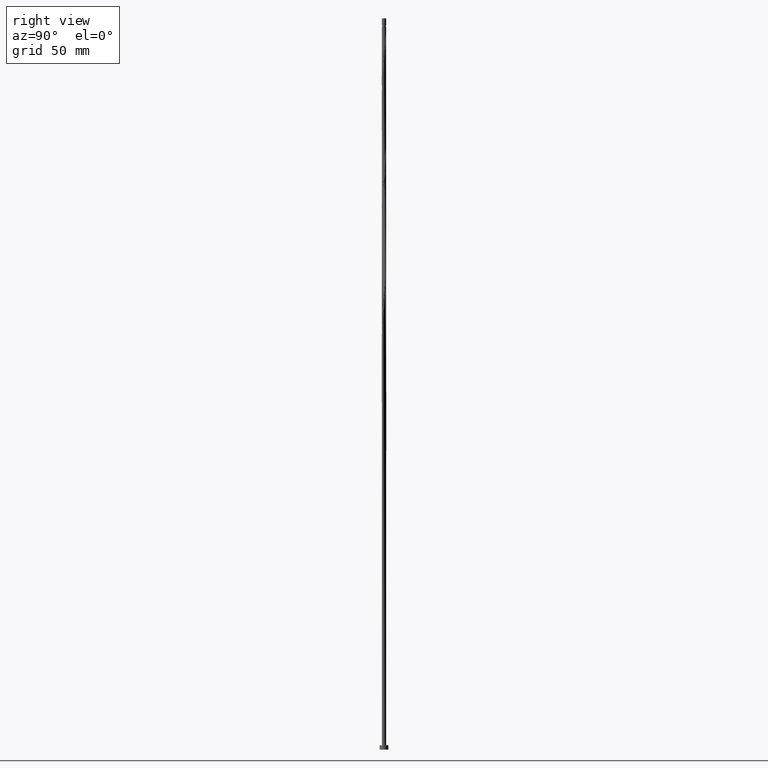
[diagram: clean part render]
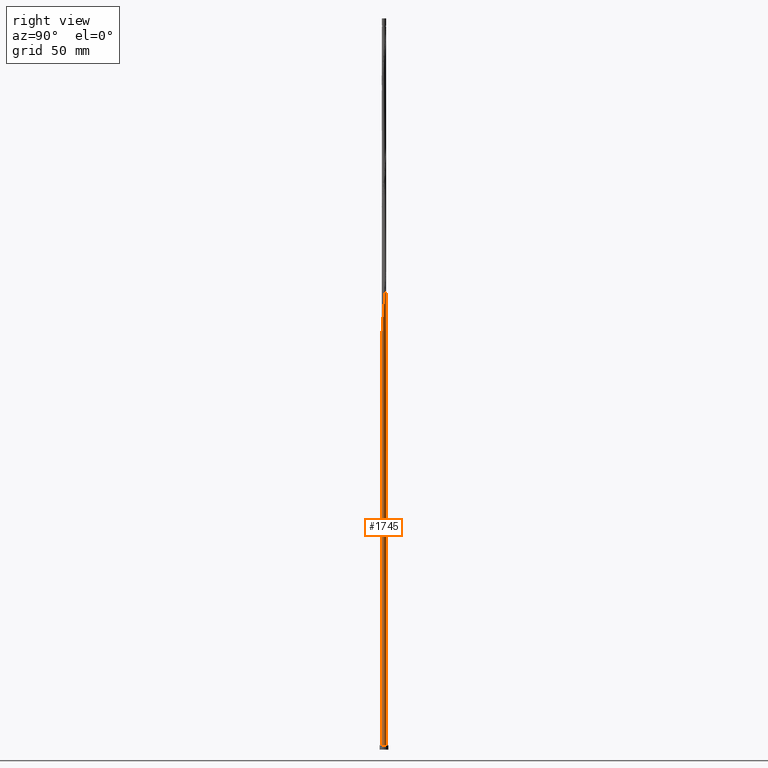
[diagram: same view with one face highlighted and labeled with its STEP entity id]
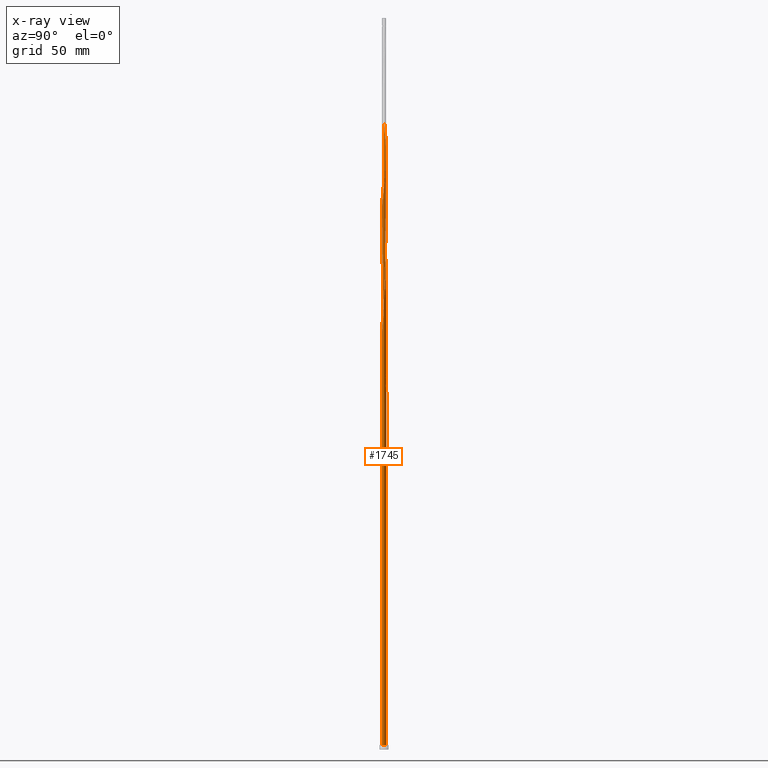
[diagram: x-ray of the same camera — body ghosted, the highlighted face saturated]
A machine part, right view. The second image highlights one B-rep face of the part: STEP entity #1745.
The next image is the same camera in x-ray: the body ghosted, the highlighted face saturated — about 0% of this face is hidden behind the body in this view.
In plain terms, the highlighted cylindrical surface (bore or boss wall) has radius 1.5 mm, axis along (-0, -0, -1).
Its self-contained STEP definition (entity closure, byte-faithful):
#1 = CARTESIAN_POINT ( 'NONE',  ( 1.388095950770216191, -0.5684976969657283830, 299.0573442709492724 ) ) ;
#35 = DIRECTION ( 'NONE',  ( -0.000000000000000000, -0.000000000000000000, -1.000000000000000000 ) ) ;
#36 = CARTESIAN_POINT ( 'NONE',  ( -1.472332475069225932, 0.2867700871020777420, 426.6615109376159012 ) ) ;
#41 = CARTESIAN_POINT ( 'NONE',  ( 0.2867700871020786302, 1.472332475069225710, 322.4948442709492724 ) ) ;
#46 = CARTESIAN_POINT ( 'NONE',  ( -1.500000000000001998, -1.978455483627000444E-15, 262.5463139596190558 ) ) ;
#48 = ORIENTED_EDGE ( 'NONE', *, *, #1862, .F. ) ;
#49 = CARTESIAN_POINT ( 'NONE',  ( 1.161306115645687198, 0.9608300359419851278, 396.7135942709494429 ) ) ;
#50 = CARTESIAN_POINT ( 'NONE',  ( -0.8383192040512870147, 1.243873350513959419, 416.2448442709492156 ) ) ;
#58 = CIRCLE ( 'NONE', #541, 1.500000000000000222 ) ;
#59 = CARTESIAN_POINT ( 'NONE',  ( -1.064878788111903285, 1.056424709399269357, 418.8490109376158443 ) ) ;
#67 = CARTESIAN_POINT ( 'NONE',  ( 1.472332475069225710, -0.2867700871020785747, 384.9948442709492156 ) ) ;
#75 =( BOUNDED_CURVE ( )  B_SPLINE_CURVE ( 2, ( #1378, #500, #931, #1231, #172, #1099, #1722, #915, #1538, #331, #1081, #1397, #1389, #162, #46 ),
 .UNSPECIFIED., .F., .T. ) 
 B_SPLINE_CURVE_WITH_KNOTS ( ( 3, 2, 2, 2, 2, 2, 2, 3 ),
 ( 0.000000000000000000, 0.007812500000000000000, 0.01562500000000000000, 0.02343750000000000000, 0.03125000000000000000, 0.03906250000000000000, 0.04687500000000000000, 0.05452869021808708777 ),
 .UNSPECIFIED. ) 
 CURVE ( )  GEOMETRIC_REPRESENTATION_ITEM ( )  RATIONAL_B_SPLINE_CURVE ( ( 0.9090909090910448409, 0.9047133878839501708, 0.9090909090910448409, 0.9047133878839501708, 0.9090909090910448409, 0.9047133878839501708, 0.9090909090910448409, 0.9047133878839501708, 0.9090909090910448409, 0.9047133878839501708, 0.9090909090910448409, 0.9047133878839501708, 0.9090909090910448409, 0.9048023726120421051, 0.9089165573360480366 ) ) 
 REPRESENTATION_ITEM ( '' )  );
#77 = CARTESIAN_POINT ( 'NONE',  ( -1.499399312701015008, -0.1537138681969590637, 347.2344276042826436 ) ) ;
#82 = CARTESIAN_POINT ( 'NONE',  ( -1.500000000000000222, -1.805585256489560181E-15, 267.8600412489462315 ) ) ;
#85 = CARTESIAN_POINT ( 'NONE',  ( 1.499988088044890366, 0.005977936386387720097, 304.2656776042825300 ) ) ;
#97 = CARTESIAN_POINT ( 'NONE',  ( -0.9515433031528518493, -1.168927540281821997, 357.6510942709494429 ) ) ;
#129 = CARTESIAN_POINT ( 'NONE',  ( -0.5684976969657277168, 1.388095950770213971, 252.1823442709492724 ) ) ;
#132 = CARTESIAN_POINT ( 'NONE',  ( -1.440600687298987159, -0.4432785940670225244, 349.8385942709493293 ) ) ;
#135 = CARTESIAN_POINT ( 'NONE',  ( -0.8383192040512870147, 1.243873350513959419, 332.9115109376159012 ) ) ;
#157 = CARTESIAN_POINT ( 'NONE',  ( 0.9608300359419851278, -1.161306115645687198, 292.5469276042827005 ) ) ;
#162 = CARTESIAN_POINT ( 'NONE',  ( -1.500000000000002665, 0.1447197223934710009, 261.2703338542030451 ) ) ;
#168 = CARTESIAN_POINT ( 'NONE',  ( 0.4317821787799733801, 1.444088086749686139, 321.1927609376161286 ) ) ;
#172 = CARTESIAN_POINT ( 'NONE',  ( -0.8383192040512870147, 1.243873350513959419, 249.5781776042826152 ) ) ;
#177 = DIRECTION ( 'NONE',  ( -1.000000000000000000, 0.000000000000000000, 0.000000000000000000 ) ) ;
#185 = CARTESIAN_POINT ( 'NONE',  ( 1.250515677536283343, -0.8283782591521682281, 379.7865109376159580 ) ) ;
#192 = CARTESIAN_POINT ( 'NONE',  ( -1.470000000000000862, -0.2984962311319908079, 265.2031776042825868 ) ) ;
#195 = CARTESIAN_POINT ( 'NONE',  ( 0.5795434831138062126, -1.383520636340608956, 371.9740109376158443 ) ) ;
#198 = CARTESIAN_POINT ( 'NONE',  ( -0.005977936386387613411, 1.499988088044890366, 325.0990109376158443 ) ) ;
#203 = LINE ( 'NONE', #1061, #1817 ) ;
#206 = CARTESIAN_POINT ( 'NONE',  ( 1.499399312701015452, 0.1537138681969595078, 388.9010942709494429 ) ) ;
#217 = CARTESIAN_POINT ( 'NONE',  ( 0.5684976969657283830, 1.388095950770216191, 403.2240109376159580 ) ) ;
#226 = CARTESIAN_POINT ( 'NONE',  ( 0.8383192040512867926, -1.243873350513959419, 374.5781776042825300 ) ) ;
#252 = CARTESIAN_POINT ( 'NONE',  ( 1.250515677536283343, -0.8283782591521682281, 296.4531776042826436 ) ) ;
#264 = CARTESIAN_POINT ( 'NONE',  ( 1.064878788111903063, -1.056424709399269357, 293.8490109376159580 ) ) ;
#298 = CARTESIAN_POINT ( 'NONE',  ( -1.168927540281821997, 0.9515433031528518493, 336.8177609376160717 ) ) ;
#305 = DIRECTION ( 'NONE',  ( 0.000000000000000000, 0.000000000000000000, 1.000000000000000000 ) ) ;
#309 = CARTESIAN_POINT ( 'NONE',  ( -1.161306115645685200, 0.9608300359419839065, 258.6927609376159012 ) ) ;
#318 = CARTESIAN_POINT ( 'NONE',  ( -1.383520636340608956, -0.5795434831138057685, 267.8073442709492156 ) ) ;
#328 = EDGE_CURVE ( 'NONE', #1407, #1487, #1040, .T. ) ;
#331 = CARTESIAN_POINT ( 'NONE',  ( -1.332103814790744911, 0.7052132151514843850, 256.0885942709493293 ) ) ;
#350 = CARTESIAN_POINT ( 'NONE',  ( 1.064878788111903063, -1.056424709399269357, 377.1823442709492724 ) ) ;
#358 = ORIENTED_EDGE ( 'NONE', *, *, #1105, .T. ) ;
#359 = CARTESIAN_POINT ( 'NONE',  ( 1.332103814790744911, -0.7052132151514851621, 381.0885942709492724 ) ) ;
#369 = CARTESIAN_POINT ( 'NONE',  ( 0.8283782591521684502, 1.250515677536283121, 400.6198442709492724 ) ) ;
#370 = CARTESIAN_POINT ( 'NONE',  ( 0.2867700871020786302, 1.472332475069225710, 405.8281776042825868 ) ) ;
#379 = EDGE_CURVE ( 'NONE', #436, #886, #1923, .T. ) ;
#397 = CARTESIAN_POINT ( 'NONE',  ( -1.440600687298984717, 0.4432785940670222469, 263.9010942709492156 ) ) ;
#400 = CARTESIAN_POINT ( 'NONE',  ( -1.500000000000000222, 0.002988980061390100491, 267.8336876944289315 ) ) ;
#404 = EDGE_CURVE ( 'NONE', #664, #1649, #954, .T. ) ;
#422 = CARTESIAN_POINT ( 'NONE',  ( 1.472332475069225710, -0.2867700871020785747, 301.6615109376159012 ) ) ;
#424 = CARTESIAN_POINT ( 'NONE',  ( -1.243873350513959419, -0.8383192040512869037, 353.7448442709492724 ) ) ;
#429 = CARTESIAN_POINT ( 'NONE',  ( -1.472332475069225932, 0.2867700871020777420, 343.3281776042826436 ) ) ;
#433 = CARTESIAN_POINT ( 'NONE',  ( -0.5684976969657283830, -1.388095950770216191, 361.5573442709491587 ) ) ;
#436 = VERTEX_POINT ( 'NONE', #1101 ) ;
#450 = CARTESIAN_POINT ( 'NONE',  ( -0.9608300359419851278, 1.161306115645687198, 334.2135942709493293 ) ) ;
#457 = CARTESIAN_POINT ( 'NONE',  ( -1.332103814790744911, 0.7052132151514843850, 339.4219276042825300 ) ) ;
#463 = CARTESIAN_POINT ( 'NONE',  ( -1.499399312701015008, -0.1537138681969590637, 263.9010942709493293 ) ) ;
#465 = CARTESIAN_POINT ( 'NONE',  ( 0.7158083721605890126, -1.326440585382231641, 289.9427609376161286 ) ) ;
#500 = CARTESIAN_POINT ( 'NONE',  ( -0.4432785940670224689, 1.440600687298987159, 245.6719276042826721 ) ) ;
#504 = CARTESIAN_POINT ( 'NONE',  ( 0.7158083721605890126, -1.326440585382231641, 373.2760942709494429 ) ) ;
#519 = CARTESIAN_POINT ( 'NONE',  ( 0.005977936386387828517, -1.499988088044890366, 283.4323442709492724 ) ) ;
#522 = CARTESIAN_POINT ( 'NONE',  ( 1.470000000000000862, 0.2984962311319905859, 390.2031776042825868 ) ) ;
#530 = ORIENTED_EDGE ( 'NONE', *, *, #1684, .T. ) ;
#531 = CARTESIAN_POINT ( 'NONE',  ( -1.500576863388766391, 0.1417579954241824647, 344.6302609376161286 ) ) ;
#536 = CARTESIAN_POINT ( 'NONE',  ( -1.500000000000001998, -1.978455483627000444E-15, 262.5463139596190558 ) ) ;
#541 = AXIS2_PLACEMENT_3D ( 'NONE', #1052, #305, #906 ) ;
#560 = CARTESIAN_POINT ( 'NONE',  ( 0.8283782591521684502, 1.250515677536283121, 317.2865109376159580 ) ) ;
#566 = CARTESIAN_POINT ( 'NONE',  ( -1.444088086749686139, 0.4317821787799731026, 342.0260942709493293 ) ) ;
#572 = CARTESIAN_POINT ( 'NONE',  ( -0.2984962311319904193, 1.470000000000000862, 244.3698442709492724 ) ) ;
#615 = CARTESIAN_POINT ( 'NONE',  ( 0.5795434831138062126, -1.383520636340608956, 288.6406776042825300 ) ) ;
#619 = CARTESIAN_POINT ( 'NONE',  ( 1.440600687298987159, 0.4432785940670218028, 308.1719276042827005 ) ) ;
#623 = CARTESIAN_POINT ( 'NONE',  ( -1.161306115645687198, -0.9608300359419852388, 271.7135942709493293 ) ) ;
#636 = AXIS2_PLACEMENT_3D ( 'NONE', #763, #1939, #731 ) ;
#650 = CARTESIAN_POINT ( 'NONE',  ( -1.500000000000001998, 0.1447197223934739985, 427.9370005208697876 ) ) ;
#653 = CARTESIAN_POINT ( 'NONE',  ( 0.4317821787799733801, 1.444088086749686139, 404.5260942709493861 ) ) ;
#660 = CARTESIAN_POINT ( 'NONE',  ( -0.2867700871020777420, -1.472332475069225932, 280.8281776042825300 ) ) ;
#664 = VERTEX_POINT ( 'NONE', #536 ) ;
#672 = CARTESIAN_POINT ( 'NONE',  ( 0.4432785940670224689, -1.440600687298987159, 370.6719276042827005 ) ) ;
#673 = CARTESIAN_POINT ( 'NONE',  ( -1.168927540281821997, 0.9515433031528518493, 420.1510942709493293 ) ) ;
#679 = CARTESIAN_POINT ( 'NONE',  ( 0.2984962311319906969, -1.470000000000000862, 286.0365109376159580 ) ) ;
#708 = CARTESIAN_POINT ( 'NONE',  ( 1.444088086749686362, -0.4317821787799731581, 300.3594276042825868 ) ) ;
#709 = LINE ( 'NONE', #1042, #785 ) ;
#717 = EDGE_CURVE ( 'NONE', #1769, #886, #1843, .T. ) ;
#729 = CARTESIAN_POINT ( 'NONE',  ( -0.8283782591521678951, -1.250515677536283121, 358.9531776042825300 ) ) ;
#731 = DIRECTION ( 'NONE',  ( -1.000000000000000000, 0.000000000000000000, 0.000000000000000000 ) ) ;
#738 = DIRECTION ( 'NONE',  ( 1.000000000000000000, 0.000000000000000000, 0.000000000000000000 ) ) ;
#743 = CARTESIAN_POINT ( 'NONE',  ( -0.7052132151514843850, -1.332103814790745577, 360.2552609376161854 ) ) ;
#763 = CARTESIAN_POINT ( 'NONE',  ( 0.000000000000000000, 0.000000000000000000, 500.0000000000000000 ) ) ;
#777 = CARTESIAN_POINT ( 'NONE',  ( -0.1537138681969594800, 1.499399312701015452, 326.4010942709493293 ) ) ;
#785 = VECTOR ( 'NONE', #1156, 1000.000000000000000 ) ;
#799 = CARTESIAN_POINT ( 'NONE',  ( -0.2984962311319904749, 1.470000000000000862, 327.7031776042826436 ) ) ;
#804 = CARTESIAN_POINT ( 'NONE',  ( -0.5684976969657283830, -1.388095950770216191, 278.2240109376159012 ) ) ;
#809 = CARTESIAN_POINT ( 'NONE',  ( 1.383520636340608956, 0.5795434831138062126, 392.8073442709493293 ) ) ;
#838 = CARTESIAN_POINT ( 'NONE',  ( 1.326440585382231641, 0.7158083721605890126, 310.7760942709493861 ) ) ;
#844 = CARTESIAN_POINT ( 'NONE',  ( -1.499988088044889034, 0.005977936386388640368, 267.8073442709493861 ) ) ;
#858 = CARTESIAN_POINT ( 'NONE',  ( 0.9515433031528515162, 1.168927540281822219, 315.9844276042825868 ) ) ;
#860 = CARTESIAN_POINT ( 'NONE',  ( -0.1417579954241825479, -1.500576863388766391, 365.4635942709493293 ) ) ;
#871 = CARTESIAN_POINT ( 'NONE',  ( 1.500576863388766391, -0.1417579954241827145, 302.9635942709493293 ) ) ;
#873 = CARTESIAN_POINT ( 'NONE',  ( -1.056424709399269357, -1.064878788111903063, 356.3490109376160717 ) ) ;
#883 = CARTESIAN_POINT ( 'NONE',  ( -1.326440585382231641, -0.7158083721605893457, 352.4427609376159580 ) ) ;
#886 = VERTEX_POINT ( 'NONE', #1632 ) ;
#889 = CARTESIAN_POINT ( 'NONE',  ( -0.4432785940670224689, 1.440600687298987159, 329.0052609376159580 ) ) ;
#900 = EDGE_LOOP ( 'NONE', ( #933, #1018, #358, #1873, #530, #1957, #48, #1084, #1255 ) ) ;
#906 = DIRECTION ( 'NONE',  ( 1.000000000000000000, 0.000000000000000000, 0.000000000000000000 ) ) ;
#914 = CARTESIAN_POINT ( 'NONE',  ( -1.326440585382231641, -0.7158083721605893457, 269.1094276042826436 ) ) ;
#915 = CARTESIAN_POINT ( 'NONE',  ( -1.168927540281821997, 0.9515433031528518493, 253.4844276042827005 ) ) ;
#920 = CARTESIAN_POINT ( 'NONE',  ( -1.499399312701013232, 0.1537138681969592025, 266.5052609376159012 ) ) ;
#931 = CARTESIAN_POINT ( 'NONE',  ( -0.5795434831138058795, 1.383520636340608956, 246.9740109376159580 ) ) ;
#933 = ORIENTED_EDGE ( 'NONE', *, *, #1974, .F. ) ;
#936 = CARTESIAN_POINT ( 'NONE',  ( -1.383520636340607624, 0.5795434831138055465, 262.5990109376159580 ) ) ;
#942 = CARTESIAN_POINT ( 'NONE',  ( 1.500576863388766391, -0.1417579954241827145, 386.2969276042827005 ) ) ;
#943 = CARTESIAN_POINT ( 'NONE',  ( -0.005977936386387613411, 1.499988088044890366, 408.4323442709492724 ) ) ;
#953 = CARTESIAN_POINT ( 'NONE',  ( 1.444088086749686362, -0.4317821787799731581, 383.6927609376161286 ) ) ;
#954 =( BOUNDED_CURVE ( )  B_SPLINE_CURVE ( 2, ( #1849, #1557, #1671, #463, #192, #1680, #318, #914, #1526, #623, #1220, #1570, #961, #1129, #804, #1892, #660, #1580, #519, #1432, #679, #1465, #615, #465, #1472, #157, #264, #1374, #252, #1014, #1, #708, #422, #871, #85, #1774, #1363, #619, #1513, #838, #1216, #1453, #1310, #858, #560, #1155, #1319, #168, #41, #1867, #198, #777, #799, #889, #1202, #1813, #135, #450, #1021, #298, #1328, #457, #1054, #566, #429, #531, #1303, #77, #1790, #132, #1559, #883, #424, #1177, #873, #97, #729, #743, #433, #1496, #1157, #860, #1474, #1484, #1256, #672, #195, #504, #226, #1241, #350, #1726, #185, #359, #1436, #953, #67, #942, #1585, #206, #522, #1737, #809, #1418, #1121, #49, #1269, #1887, #369, #965, #217, #653, #370, #1242, #943, #1563, #1103, #955, #1574, #1419, #50, #1270, #59, #673, #1122, #1714, #1267, #1560, #36, #650, #1253 ),
 .UNSPECIFIED., .F., .T. ) 
 B_SPLINE_CURVE_WITH_KNOTS ( ( 3, 2, 2, 2, 2, 2, 2, 2, 2, 2, 2, 2, 2, 2, 2, 2, 2, 2, 2, 2, 2, 2, 2, 2, 2, 2, 2, 2, 2, 2, 2, 2, 2, 2, 2, 2, 2, 2, 2, 2, 2, 2, 2, 2, 2, 2, 2, 2, 2, 2, 2, 2, 2, 2, 2, 2, 2, 2, 2, 2, 2, 2, 2, 2, 2, 3 ),
 ( 0.05452869021808708777, 0.05468750000000000000, 0.06250000000000000000, 0.07031250000000000000, 0.07812500000000000000, 0.08593750000000000000, 0.09375000000000000000, 0.1015625000000000000, 0.1093750000000000000, 0.1171875000000000000, 0.1250000000000000000, 0.1328125000000000000, 0.1406250000000000000, 0.1484375000000000000, 0.1562500000000000000, 0.1640625000000000000, 0.1718750000000000000, 0.1796875000000000000, 0.1875000000000000000, 0.1953125000000000000, 0.2031250000000000000, 0.2109375000000000000, 0.2187500000000000000, 0.2265625000000000000, 0.2343750000000000000, 0.2421875000000000000, 0.2500000000000000000, 0.2578125000000000000, 0.2656250000000000000, 0.2734375000000000000, 0.2812500000000000000, 0.2890625000000000000, 0.2968750000000000000, 0.3046875000000000000, 0.3125000000000000000, 0.3203125000000000000, 0.3281250000000000000, 0.3359375000000000000, 0.3437500000000000000, 0.3515625000000000000, 0.3593750000000000000, 0.3671875000000000000, 0.3750000000000000000, 0.3828125000000000000, 0.3906250000000000000, 0.3984375000000000000, 0.4062500000000000000, 0.4140625000000000000, 0.4218750000000000000, 0.4296875000000000000, 0.4375000000000000000, 0.4453125000000000000, 0.4531250000000000000, 0.4609375000000000000, 0.4687500000000000000, 0.4765625000000000000, 0.4843750000000000000, 0.4921875000000000000, 0.5000000000000000000, 0.5078125000000000000, 0.5156250000000000000, 0.5234375000000000000, 0.5312500000000000000, 0.5390625000000000000, 0.5468750000000000000, 0.5545286902180869282 ),
 .UNSPECIFIED. ) 
 CURVE ( )  GEOMETRIC_REPRESENTATION_ITEM ( )  RATIONAL_B_SPLINE_CURVE ( ( 0.9089165573360480366, 0.9090019243629529067, 0.9090909090910448409, 0.9047133878839501708, 0.9090909090910448409, 0.9047133878839501708, 0.9090909090910448409, 0.9047133878839501708, 0.9090909090910448409, 0.9047133878839501708, 0.9090909090910448409, 0.9047133878839501708, 0.9090909090910448409, 0.9047133878839501708, 0.9090909090910448409, 0.9047133878839501708, 0.9090909090910448409, 0.9047133878839501708, 0.9090909090910448409, 0.9047133878839501708, 0.9090909090910448409, 0.9047133878839501708, 0.9090909090910448409, 0.9047133878839501708, 0.9090909090910448409, 0.9047133878839501708, 0.9090909090910448409, 0.9047133878839501708, 0.9090909090910448409, 0.9047133878839501708, 0.9090909090910448409, 0.9047133878839501708, 0.9090909090910448409, 0.9047133878839501708, 0.9090909090910448409, 0.9047133878839501708, 0.9090909090910448409, 0.9047133878839501708, 0.9090909090910448409, 0.9047133878839501708, 0.9090909090910448409, 0.9047133878839501708, 0.9090909090910448409, 0.9047133878839501708, 0.9090909090910448409, 0.9047133878839501708, 0.9090909090910448409, 0.9047133878839501708, 0.9090909090910448409, 0.9047133878839501708, 0.9090909090910448409, 0.9047133878839501708, 0.9090909090910448409, 0.9047133878839501708, 0.9090909090910448409, 0.9047133878839501708, 0.9090909090910448409, 0.9047133878839501708, 0.9090909090910448409, 0.9047133878839501708, 0.9090909090910448409, 0.9047133878839501708, 0.9090909090910448409, 0.9047133878839501708, 0.9090909090910448409, 0.9047133878839501708, 0.9090909090910448409, 0.9047133878839501708, 0.9090909090910448409, 0.9047133878839501708, 0.9090909090910448409, 0.9047133878839501708, 0.9090909090910448409, 0.9047133878839501708, 0.9090909090910448409, 0.9047133878839501708, 0.9090909090910448409, 0.9047133878839501708, 0.9090909090910448409, 0.9047133878839501708, 0.9090909090910448409, 0.9047133878839501708, 0.9090909090910448409, 0.9047133878839501708, 0.9090909090910448409, 0.9047133878839501708, 0.9090909090910448409, 0.9047133878839501708, 0.9090909090910448409, 0.9047133878839501708, 0.9090909090910448409, 0.9047133878839501708, 0.9090909090910448409, 0.9047133878839501708, 0.9090909090910448409, 0.9047133878839501708, 0.9090909090910448409, 0.9047133878839501708, 0.9090909090910448409, 0.9047133878839501708, 0.9090909090910448409, 0.9047133878839501708, 0.9090909090910448409, 0.9047133878839501708, 0.9090909090910448409, 0.9047133878839501708, 0.9090909090910448409, 0.9047133878839501708, 0.9090909090910448409, 0.9047133878839501708, 0.9090909090910448409, 0.9047133878839501708, 0.9090909090910448409, 0.9047133878839501708, 0.9090909090910448409, 0.9047133878839501708, 0.9090909090910448409, 0.9047133878839501708, 0.9090909090910448409, 0.9047133878839501708, 0.9090909090910448409, 0.9047133878839501708, 0.9090909090910448409, 0.9047133878839501708, 0.9090909090910448409, 0.9047133878839501708, 0.9090909090910448409, 0.9047133878839501708, 0.9090909090910448409, 0.9048023726120421051, 0.9089165573360480366 ) ) 
 REPRESENTATION_ITEM ( '' )  );
#955 = CARTESIAN_POINT ( 'NONE',  ( -0.4432785940670224689, 1.440600687298987159, 412.3385942709493861 ) ) ;
#961 = CARTESIAN_POINT ( 'NONE',  ( -0.8283782591521678951, -1.250515677536283121, 275.6198442709492156 ) ) ;
#965 = CARTESIAN_POINT ( 'NONE',  ( 0.7052132151514851621, 1.332103814790744689, 401.9219276042827005 ) ) ;
#972 = AXIS2_PLACEMENT_3D ( 'NONE', #986, #1605, #177 ) ;
#986 = CARTESIAN_POINT ( 'NONE',  ( 0.000000000000000000, 0.000000000000000000, 244.3698442709493293 ) ) ;
#1014 = CARTESIAN_POINT ( 'NONE',  ( 1.332103814790744911, -0.7052132151514851621, 297.7552609376160717 ) ) ;
#1018 = ORIENTED_EDGE ( 'NONE', *, *, #404, .F. ) ;
#1021 = CARTESIAN_POINT ( 'NONE',  ( -1.064878788111903285, 1.056424709399269357, 335.5156776042825868 ) ) ;
#1032 = CARTESIAN_POINT ( 'NONE',  ( 0.000000000000000000, 0.000000000000000000, 3.000000000000000000 ) ) ;
#1040 = CIRCLE ( 'NONE', #1261, 1.500000000000000222 ) ;
#1042 = CARTESIAN_POINT ( 'NONE',  ( -1.500000000000000222, 0.000000000000000000, 500.0000000000000000 ) ) ;
#1052 = CARTESIAN_POINT ( 'NONE',  ( 0.000000000000000000, 0.000000000000000000, 3.000000000000000000 ) ) ;
#1054 = CARTESIAN_POINT ( 'NONE',  ( -1.388095950770216191, 0.5684976969657283830, 340.7240109376159012 ) ) ;
#1061 = CARTESIAN_POINT ( 'NONE',  ( -1.500000000000000222, 0.000000000000000000, 500.0000000000000000 ) ) ;
#1080 = CARTESIAN_POINT ( 'NONE',  ( 0.2984962311319910300, 1.469999999999999307, 244.3698442709492724 ) ) ;
#1081 = CARTESIAN_POINT ( 'NONE',  ( -1.388095950770216191, 0.5684976969657283830, 257.3906776042825868 ) ) ;
#1084 = ORIENTED_EDGE ( 'NONE', *, *, #717, .T. ) ;
#1087 = CARTESIAN_POINT ( 'NONE',  ( -1.469999999999999307, 0.2984962311319907524, 265.2031776042825868 ) ) ;
#1099 = CARTESIAN_POINT ( 'NONE',  ( -0.9608300359419851278, 1.161306115645687198, 250.8802609376159580 ) ) ;
#1101 = CARTESIAN_POINT ( 'NONE',  ( -1.500000000000000000, -1.805585256489560181E-15, 267.8600412489462315 ) ) ;
#1103 = CARTESIAN_POINT ( 'NONE',  ( -0.2984962311319904749, 1.470000000000000862, 411.0365109376159012 ) ) ;
#1105 = EDGE_CURVE ( 'NONE', #664, #1407, #709, .T. ) ;
#1121 = CARTESIAN_POINT ( 'NONE',  ( 1.243873350513959419, 0.8383192040512873477, 395.4115109376159012 ) ) ;
#1122 = CARTESIAN_POINT ( 'NONE',  ( -1.250515677536283565, 0.8283782591521678951, 421.4531776042825300 ) ) ;
#1129 = CARTESIAN_POINT ( 'NONE',  ( -0.7052132151514843850, -1.332103814790745577, 276.9219276042827005 ) ) ;
#1155 = CARTESIAN_POINT ( 'NONE',  ( 0.7052132151514851621, 1.332103814790744689, 318.5885942709494429 ) ) ;
#1156 = DIRECTION ( 'NONE',  ( -0.000000000000000000, -0.000000000000000000, -1.000000000000000000 ) ) ;
#1157 = CARTESIAN_POINT ( 'NONE',  ( -0.2867700871020777420, -1.472332475069225932, 364.1615109376159012 ) ) ;
#1177 = CARTESIAN_POINT ( 'NONE',  ( -1.161306115645687198, -0.9608300359419852388, 355.0469276042826436 ) ) ;
#1179 = CARTESIAN_POINT ( 'NONE',  ( -0.7052132151514831637, 1.332103814790743579, 253.4844276042825868 ) ) ;
#1202 = CARTESIAN_POINT ( 'NONE',  ( -0.5795434831138058795, 1.383520636340608956, 330.3073442709492724 ) ) ;
#1209 = CARTESIAN_POINT ( 'NONE',  ( 0.005977936386388534550, 1.499988088044889034, 246.9740109376159580 ) ) ;
#1216 = CARTESIAN_POINT ( 'NONE',  ( 1.243873350513959419, 0.8383192040512873477, 312.0781776042825868 ) ) ;
#1220 = CARTESIAN_POINT ( 'NONE',  ( -1.056424709399269357, -1.064878788111903063, 273.0156776042825868 ) ) ;
#1231 = CARTESIAN_POINT ( 'NONE',  ( -0.7158083721605894567, 1.326440585382231641, 248.2760942709493577 ) ) ;
#1239 = CARTESIAN_POINT ( 'NONE',  ( -0.1417579954241821316, 1.500576863388764171, 248.2760942709492724 ) ) ;
#1241 = CARTESIAN_POINT ( 'NONE',  ( 0.9608300359419851278, -1.161306115645687198, 375.8802609376161286 ) ) ;
#1242 = CARTESIAN_POINT ( 'NONE',  ( 0.1417579954241827978, 1.500576863388766391, 407.1302609376160717 ) ) ;
#1249 = CARTESIAN_POINT ( 'NONE',  ( -0.2867700871020771869, 1.472332475069224378, 249.5781776042826436 ) ) ;
#1253 = CARTESIAN_POINT ( 'NONE',  ( -1.500000000000001998, 1.108978815598742881E-16, 429.2129806262856846 ) ) ;
#1255 = ORIENTED_EDGE ( 'NONE', *, *, #379, .F. ) ;
#1256 = CARTESIAN_POINT ( 'NONE',  ( 0.2984962311319906969, -1.470000000000000862, 369.3698442709491587 ) ) ;
#1261 = AXIS2_PLACEMENT_3D ( 'NONE', #1032, #1783, #738 ) ;
#1267 = CARTESIAN_POINT ( 'NONE',  ( -1.388095950770216191, 0.5684976969657283830, 424.0573442709492724 ) ) ;
#1269 = CARTESIAN_POINT ( 'NONE',  ( 1.056424709399269357, 1.064878788111902841, 398.0156776042825300 ) ) ;
#1270 = CARTESIAN_POINT ( 'NONE',  ( -0.9608300359419851278, 1.161306115645687198, 417.5469276042827005 ) ) ;
#1303 = CARTESIAN_POINT ( 'NONE',  ( -1.499988088044890366, -0.005977936386388253524, 345.9323442709492156 ) ) ;
#1310 = CARTESIAN_POINT ( 'NONE',  ( 1.056424709399269357, 1.064878788111902841, 314.6823442709492156 ) ) ;
#1319 = CARTESIAN_POINT ( 'NONE',  ( 0.5684976969657283830, 1.388095950770216191, 319.8906776042825868 ) ) ;
#1328 = CARTESIAN_POINT ( 'NONE',  ( -1.250515677536283565, 0.8283782591521678951, 338.1198442709492156 ) ) ;
#1363 = CARTESIAN_POINT ( 'NONE',  ( 1.470000000000000862, 0.2984962311319905859, 306.8698442709493293 ) ) ;
#1374 = CARTESIAN_POINT ( 'NONE',  ( 1.168927540281821775, -0.9515433031528519603, 295.1510942709493861 ) ) ;
#1378 = CARTESIAN_POINT ( 'NONE',  ( -0.2984962311319904193, 1.470000000000000862, 244.3698442709492724 ) ) ;
#1389 = CARTESIAN_POINT ( 'NONE',  ( -1.472332475069225932, 0.2867700871020777420, 259.9948442709492724 ) ) ;
#1397 = CARTESIAN_POINT ( 'NONE',  ( -1.444088086749686139, 0.4317821787799731026, 258.6927609376160149 ) ) ;
#1407 = VERTEX_POINT ( 'NONE', #1508 ) ;
#1418 = CARTESIAN_POINT ( 'NONE',  ( 1.326440585382231641, 0.7158083721605890126, 394.1094276042825300 ) ) ;
#1419 = CARTESIAN_POINT ( 'NONE',  ( -0.7158083721605894567, 1.326440585382231641, 414.9427609376160717 ) ) ;
#1432 = CARTESIAN_POINT ( 'NONE',  ( 0.1537138681969590082, -1.499399312701015008, 284.7344276042826436 ) ) ;
#1436 = CARTESIAN_POINT ( 'NONE',  ( 1.388095950770216191, -0.5684976969657283830, 382.3906776042825868 ) ) ;
#1453 = CARTESIAN_POINT ( 'NONE',  ( 1.161306115645687198, 0.9608300359419851278, 313.3802609376160149 ) ) ;
#1465 = CARTESIAN_POINT ( 'NONE',  ( 0.4432785940670224689, -1.440600687298987159, 287.3385942709492724 ) ) ;
#1472 = CARTESIAN_POINT ( 'NONE',  ( 0.8383192040512867926, -1.243873350513959419, 291.2448442709492724 ) ) ;
#1474 = CARTESIAN_POINT ( 'NONE',  ( 0.005977936386387828517, -1.499988088044890366, 366.7656776042827005 ) ) ;
#1476 = CARTESIAN_POINT ( 'NONE',  ( 1.500000000000000222, 0.000000000000000000, 3.000000000000000000 ) ) ;
#1480 = CARTESIAN_POINT ( 'NONE',  ( -1.326440585382229864, 0.7158083721605885685, 261.2969276042825300 ) ) ;
#1484 = CARTESIAN_POINT ( 'NONE',  ( 0.1537138681969590082, -1.499399312701015008, 368.0677609376160149 ) ) ;
#1486 = FACE_OUTER_BOUND ( 'NONE', #900, .T. ) ;
#1487 = VERTEX_POINT ( 'NONE', #1476 ) ;
#1490 = CARTESIAN_POINT ( 'NONE',  ( -0.9515433031528500729, 1.168927540281820443, 256.0885942709492724 ) ) ;
#1496 = CARTESIAN_POINT ( 'NONE',  ( -0.4317821787799731026, -1.444088086749686139, 362.8594276042827005 ) ) ;
#1507 = CARTESIAN_POINT ( 'NONE',  ( -0.4317821787799720479, 1.444088086749684363, 250.8802609376159580 ) ) ;
#1508 = CARTESIAN_POINT ( 'NONE',  ( -1.500000000000000222, 0.000000000000000000, 3.000000000000000000 ) ) ;
#1513 = CARTESIAN_POINT ( 'NONE',  ( 1.383520636340608956, 0.5795434831138062126, 309.4740109376159580 ) ) ;
#1518 = CYLINDRICAL_SURFACE ( 'NONE', #636, 1.500000000000000222 ) ;
#1526 = CARTESIAN_POINT ( 'NONE',  ( -1.243873350513959419, -0.8383192040512869037, 270.4115109376159580 ) ) ;
#1538 = CARTESIAN_POINT ( 'NONE',  ( -1.250515677536283565, 0.8283782591521678951, 254.7865109376159580 ) ) ;
#1557 = CARTESIAN_POINT ( 'NONE',  ( -1.500000000000001998, -0.002988980061392714285, 262.5726675141362989 ) ) ;
#1559 = CARTESIAN_POINT ( 'NONE',  ( -1.383520636340608956, -0.5795434831138057685, 351.1406776042824731 ) ) ;
#1560 = CARTESIAN_POINT ( 'NONE',  ( -1.444088086749686139, 0.4317821787799731026, 425.3594276042827573 ) ) ;
#1563 = CARTESIAN_POINT ( 'NONE',  ( -0.1537138681969594800, 1.499399312701015452, 409.7344276042827005 ) ) ;
#1570 = CARTESIAN_POINT ( 'NONE',  ( -0.9515433031528518493, -1.168927540281821997, 274.3177609376159580 ) ) ;
#1574 = CARTESIAN_POINT ( 'NONE',  ( -0.5795434831138058795, 1.383520636340608956, 413.6406776042826436 ) ) ;
#1580 = CARTESIAN_POINT ( 'NONE',  ( -0.1417579954241825479, -1.500576863388766391, 282.1302609376160149 ) ) ;
#1585 = CARTESIAN_POINT ( 'NONE',  ( 1.499988088044890366, 0.005977936386387720097, 387.5990109376160149 ) ) ;
#1605 = DIRECTION ( 'NONE',  ( 0.000000000000000000, -0.000000000000000000, -1.000000000000000000 ) ) ;
#1632 = CARTESIAN_POINT ( 'NONE',  ( 0.2984962311319910300, 1.469999999999999307, 244.3698442709492724 ) ) ;
#1649 = VERTEX_POINT ( 'NONE', #1820 ) ;
#1671 = CARTESIAN_POINT ( 'NONE',  ( -1.499988088044890366, -0.005977936386388253524, 262.5990109376159580 ) ) ;
#1674 = CARTESIAN_POINT ( 'NONE',  ( -1.243873350513958087, 0.8383192040512865706, 259.9948442709492724 ) ) ;
#1680 = CARTESIAN_POINT ( 'NONE',  ( -1.440600687298987159, -0.4432785940670225244, 266.5052609376160717 ) ) ;
#1684 = EDGE_CURVE ( 'NONE', #1487, #1407, #58, .T. ) ;
#1712 = CARTESIAN_POINT ( 'NONE',  ( 0.1537138681969592857, 1.499399312701013232, 245.6719276042826152 ) ) ;
#1714 = CARTESIAN_POINT ( 'NONE',  ( -1.332103814790744911, 0.7052132151514843850, 422.7552609376160717 ) ) ;
#1722 = CARTESIAN_POINT ( 'NONE',  ( -1.064878788111903285, 1.056424709399269357, 252.1823442709492724 ) ) ;
#1726 = CARTESIAN_POINT ( 'NONE',  ( 1.168927540281821775, -0.9515433031528519603, 378.4844276042825868 ) ) ;
#1737 = CARTESIAN_POINT ( 'NONE',  ( 1.440600687298987159, 0.4432785940670218028, 391.5052609376160717 ) ) ;
#1745 = ADVANCED_FACE ( 'NONE', ( #1486 ), #1518, .T. ) ;
#1769 = VERTEX_POINT ( 'NONE', #572 ) ;
#1774 = CARTESIAN_POINT ( 'NONE',  ( 1.499399312701015452, 0.1537138681969595078, 305.5677609376161286 ) ) ;
#1783 = DIRECTION ( 'NONE',  ( 0.000000000000000000, 0.000000000000000000, 1.000000000000000000 ) ) ;
#1790 = CARTESIAN_POINT ( 'NONE',  ( -1.470000000000000862, -0.2984962311319908079, 348.5365109376159580 ) ) ;
#1813 = CARTESIAN_POINT ( 'NONE',  ( -0.7158083721605894567, 1.326440585382231641, 331.6094276042827005 ) ) ;
#1817 = VECTOR ( 'NONE', #35, 1000.000000000000000 ) ;
#1820 = CARTESIAN_POINT ( 'NONE',  ( -1.500000000000001998, 1.108978815598742881E-16, 429.2129806262856846 ) ) ;
#1843 = CIRCLE ( 'NONE', #972, 1.500000000000000222 ) ;
#1849 = CARTESIAN_POINT ( 'NONE',  ( -1.500000000000001998, -1.978455483627000444E-15, 262.5463139596190558 ) ) ;
#1862 = EDGE_CURVE ( 'NONE', #1769, #664, #75, .T. ) ;
#1867 = CARTESIAN_POINT ( 'NONE',  ( 0.1417579954241827978, 1.500576863388766391, 323.7969276042826436 ) ) ;
#1873 = ORIENTED_EDGE ( 'NONE', *, *, #328, .T. ) ;
#1887 = CARTESIAN_POINT ( 'NONE',  ( 0.9515433031528515162, 1.168927540281822219, 399.3177609376161286 ) ) ;
#1892 = CARTESIAN_POINT ( 'NONE',  ( -0.4317821787799731026, -1.444088086749686139, 279.5260942709494429 ) ) ;
#1923 =( BOUNDED_CURVE ( )  B_SPLINE_CURVE ( 2, ( #82, #400, #844, #920, #1087, #397, #936, #1480, #1674, #309, #1942, #1490, #1951, #1179, #129, #1507, #1249, #1239, #1209, #1712, #1080 ),
 .UNSPECIFIED., .F., .T. ) 
 B_SPLINE_CURVE_WITH_KNOTS ( ( 3, 2, 2, 2, 2, 2, 2, 2, 2, 2, 3 ),
 ( 0.9295286902180869282, 0.9296875000000000000, 0.9375000000000000000, 0.9453125000000000000, 0.9531250000000000000, 0.9609375000000000000, 0.9687500000000000000, 0.9765625000000000000, 0.9843750000000000000, 0.9921875000000000000, 1.000000000000000000 ),
 .UNSPECIFIED. ) 
 CURVE ( )  GEOMETRIC_REPRESENTATION_ITEM ( )  RATIONAL_B_SPLINE_CURVE ( ( 0.9089165573360429295, 0.9090019243629477996, 0.9090909090910397339, 0.9047133878839455079, 0.9090909090910397339, 0.9047133878839455079, 0.9090909090910397339, 0.9047133878839455079, 0.9090909090910397339, 0.9047133878839455079, 0.9090909090910397339, 0.9047133878839455079, 0.9090909090910397339, 0.9047133878839455079, 0.9090909090910397339, 0.9047133878839455079, 0.9090909090910397339, 0.9047133878839455079, 0.9090909090910397339, 0.9047133878839455079, 0.9090909090910397339 ) ) 
 REPRESENTATION_ITEM ( '' )  );
#1939 = DIRECTION ( 'NONE',  ( -0.000000000000000000, -0.000000000000000000, -1.000000000000000000 ) ) ;
#1942 = CARTESIAN_POINT ( 'NONE',  ( -1.056424709399268247, 1.064878788111902397, 257.3906776042825868 ) ) ;
#1951 = CARTESIAN_POINT ( 'NONE',  ( -0.8283782591521668959, 1.250515677536282455, 254.7865109376159580 ) ) ;
#1957 = ORIENTED_EDGE ( 'NONE', *, *, #1105, .F. ) ;
#1974 = EDGE_CURVE ( 'NONE', #1649, #436, #203, .T. ) ;